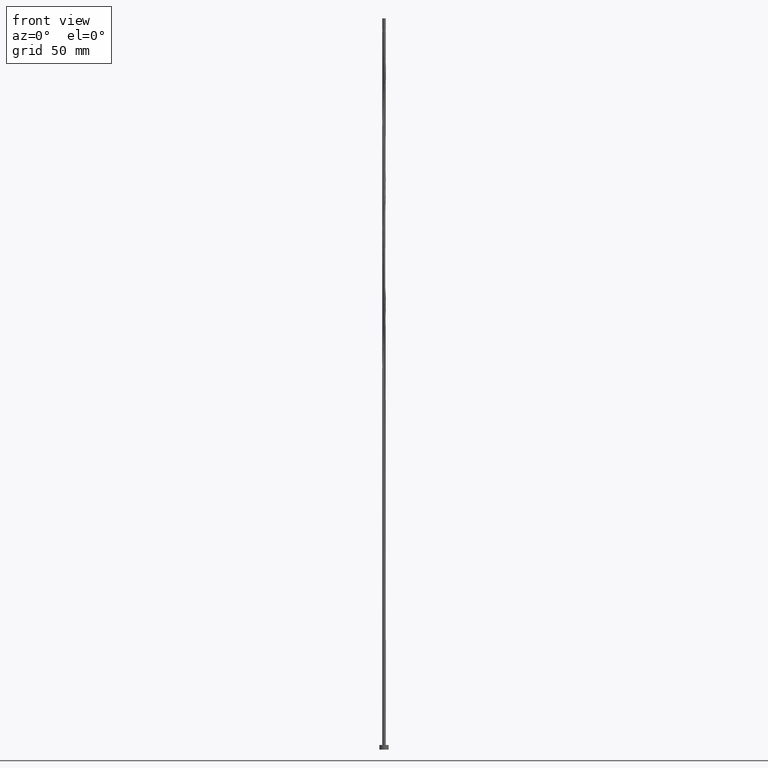
[diagram: clean part render]
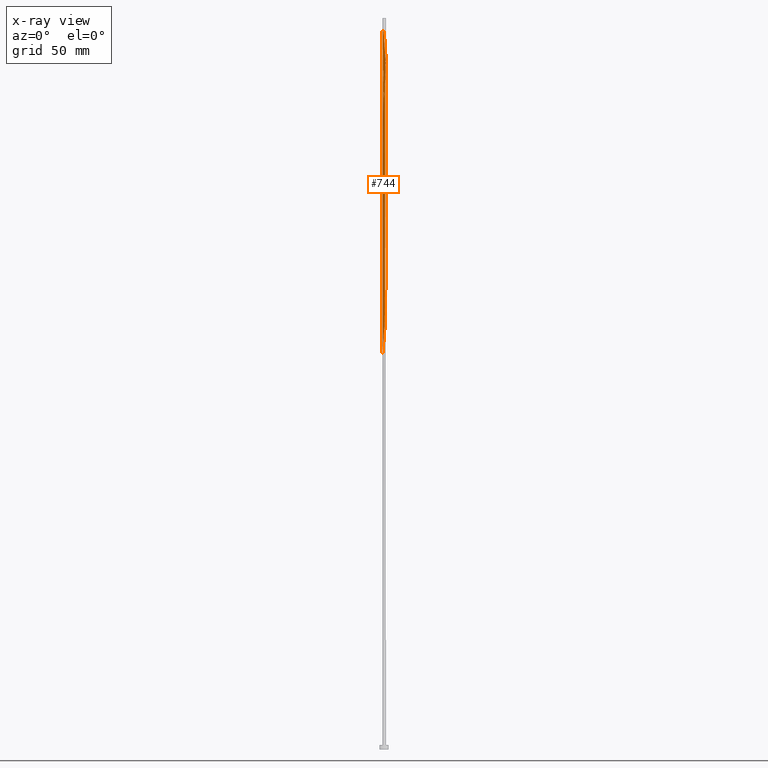
[diagram: x-ray — body ghosted, one internal face saturated and labeled with its STEP entity id]
A machine part, front view, then the same camera in x-ray: the body is ghosted and one INTERNAL B-rep face — a face not visible from any outside direction — is saturated and labeled: STEP entity #744.
In plain terms, the highlighted cylindrical surface (bore or boss wall) has radius 0.75 mm, axis along (-0, -0, -1).
Its self-contained STEP definition (entity closure, byte-faithful):
#15 = CARTESIAN_POINT ( 'NONE',  ( -0.7500000000000014433, -9.515180619971641405E-17, 268.4303063863328020 ) ) ;
#17 = DIRECTION ( 'NONE',  ( -0.000000000000000000, -0.000000000000000000, -1.000000000000000000 ) ) ;
#19 = CARTESIAN_POINT ( 'NONE',  ( -0.5749518798146917575, -0.4815914616119704172, 172.6048234642388763 ) ) ;
#29 = EDGE_CURVE ( 'NONE', #160, #1469, #1498, .T. ) ;
#33 = CARTESIAN_POINT ( 'NONE',  ( 0.4168099430121542381, 0.6292142056253040572, 302.9173234642388479 ) ) ;
#35 = CARTESIAN_POINT ( 'NONE',  ( -0.7500000000000012212, 3.143741047971028245E-16, 166.7793405421449791 ) ) ;
#43 = CARTESIAN_POINT ( 'NONE',  ( 0.4168099430121536830, -0.6292142056253036131, 184.7923234642388195 ) ) ;
#49 = CARTESIAN_POINT ( 'NONE',  ( -0.7181837760446289076, -0.2320627263925773009, 271.0423234642388479 ) ) ;
#57 = CARTESIAN_POINT ( 'NONE',  ( 0.7500000000000009992, 0.009024672874791424271, 245.6297032303699837 ) ) ;
#92 = VERTEX_POINT ( 'NONE', #1203 ) ;
#104 = CARTESIAN_POINT ( 'NONE',  ( -0.7500000000000001110, 0.000000000000000000, 315.0000000000000000 ) ) ;
#114 = CARTESIAN_POINT ( 'NONE',  ( -0.7181837760446285746, 0.2320627263925772454, 216.6673234642388195 ) ) ;
#126 = CARTESIAN_POINT ( 'NONE',  ( -0.3415781289176473834, 0.6677008176160346142, 210.1048234642388763 ) ) ;
#133 = DIRECTION ( 'NONE',  ( -0.000000000000000000, -0.000000000000000000, -1.000000000000000000 ) ) ;
#140 = CYLINDRICAL_SURFACE ( 'NONE', #1267, 0.7500000000000001110 ) ;
#150 = CARTESIAN_POINT ( 'NONE',  ( -0.1492481155660108638, 0.7350000000001851719, 309.4798234642387342 ) ) ;
#160 = VERTEX_POINT ( 'NONE', #1762 ) ;
#165 = CARTESIAN_POINT ( 'NONE',  ( 0.7061874296067650603, -0.2663463148231410837, 291.6673234642388479 ) ) ;
#167 = CARTESIAN_POINT ( 'NONE',  ( 0.7518162239553727311, -0.06643350473941404821, 192.2923234642388195 ) ) ;
#174 = CARTESIAN_POINT ( 'NONE',  ( 0.6677008176160343922, -0.3415781289176477165, 290.7298234642388479 ) ) ;
#182 = CARTESIAN_POINT ( 'NONE',  ( -0.5463729802117873735, -0.5206895540040796799, 274.7923234642388479 ) ) ;
#189 = VECTOR ( 'NONE', #133, 1000.000000000000000 ) ;
#191 = CARTESIAN_POINT ( 'NONE',  ( 0.2663463148231408062, -0.7061874296067648382, 182.9173234642388479 ) ) ;
#199 = CARTESIAN_POINT ( 'NONE',  ( -0.7500000000000012212, 2.024308033856715142E-16, 271.7793405421449506 ) ) ;
#213 = CARTESIAN_POINT ( 'NONE',  ( -0.1025269702435410574, 0.7477494670858394477, 259.7923234642387911 ) ) ;
#227 = CARTESIAN_POINT ( 'NONE',  ( -0.1844366425333410497, 0.7269684483463023650, 260.7298234642389048 ) ) ;
#238 = CARTESIAN_POINT ( 'NONE',  ( -0.7497828455206062559, -0.01804673275206353580, 219.4798234642388763 ) ) ;
#250 = CARTESIAN_POINT ( 'NONE',  ( -0.3090590401637189899, -0.6833611853866755625, 228.8548234642388479 ) ) ;
#256 = VERTEX_POINT ( 'NONE', #527 ) ;
#260 = ORIENTED_EDGE ( 'NONE', *, *, #775, .F. ) ;
#262 = CARTESIAN_POINT ( 'NONE',  ( -0.6485385947287229946, 0.3860553539348604013, 214.7923234642388195 ) ) ;
#285 = CARTESIAN_POINT ( 'NONE',  ( 0.7350000000000005418, -0.1492481155659957925, 243.8548234642389048 ) ) ;
#288 = EDGE_CURVE ( 'NONE', #160, #549, #1432, .T. ) ;
#300 = CARTESIAN_POINT ( 'NONE',  ( 0.7269684483463024760, -0.1844366425333412440, 292.6048234642389616 ) ) ;
#303 = LINE ( 'NONE', #600, #1118 ) ;
#327 = CARTESIAN_POINT ( 'NONE',  ( -0.7497828455206062559, -0.01804673275206353580, 166.9798234642388763 ) ) ;
#332 = CARTESIAN_POINT ( 'NONE',  ( 0.2320627263925774120, 0.7181837760446283525, 256.0423234642387911 ) ) ;
#335 = CARTESIAN_POINT ( 'NONE',  ( 0.6677008176160346142, 0.3415781289176472724, 196.9798234642389332 ) ) ;
#367 = CARTESIAN_POINT ( 'NONE',  ( -0.2663463148231408617, 0.7061874296067648382, 261.6673234642388479 ) ) ;
#386 = CARTESIAN_POINT ( 'NONE',  ( 0.1025269702435409602, -0.7477494670858394477, 233.5423234642387627 ) ) ;
#401 = CARTESIAN_POINT ( 'NONE',  ( -0.5463729802117868184, 0.5206895540040794579, 212.9173234642388195 ) ) ;
#410 = CARTESIAN_POINT ( 'NONE',  ( -0.7269684483463023650, -0.1844366425333409942, 221.3548234642388763 ) ) ;
#422 = CARTESIAN_POINT ( 'NONE',  ( 0.7500000000000011102, -3.936672766301999368E-16, 245.5293405421449222 ) ) ;
#437 = CARTESIAN_POINT ( 'NONE',  ( 0.5206895540040796799, -0.5463729802117873735, 287.9173234642388479 ) ) ;
#440 = CARTESIAN_POINT ( 'NONE',  ( 0.6833611853866755625, -0.3090590401637189899, 189.4798234642388479 ) ) ;
#446 = CARTESIAN_POINT ( 'NONE',  ( 0.5463729802117873735, 0.5206895540040795689, 301.0423234642389048 ) ) ;
#448 = CARTESIAN_POINT ( 'NONE',  ( -0.4533724539694700684, -0.5974557874702549620, 174.4798234642388763 ) ) ;
#454 = CARTESIAN_POINT ( 'NONE',  ( 0.2663463148231411948, 0.7061874296067650603, 304.7923234642390184 ) ) ;
#456 = CARTESIAN_POINT ( 'NONE',  ( 0.7181837760446283525, -0.2320627263925773287, 190.4173234642387911 ) ) ;
#457 = ORIENTED_EDGE ( 'NONE', *, *, #858, .T. ) ;
#464 = CARTESIAN_POINT ( 'NONE',  ( 0.06643350473941389556, 0.7518162239553727311, 205.4173234642388195 ) ) ;
#468 = CARTESIAN_POINT ( 'NONE',  ( -0.3415781289176473834, 0.6677008176160346142, 262.6048234642388479 ) ) ;
#470 = CARTESIAN_POINT ( 'NONE',  ( 0.7497828455206061449, 0.01804673275206346295, 193.2298234642388763 ) ) ;
#478 = CARTESIAN_POINT ( 'NONE',  ( -0.7500000000000012212, 2.024308033856715142E-16, 271.7793405421449506 ) ) ;
#487 = CARTESIAN_POINT ( 'NONE',  ( 0.7477494670858394477, 0.1025269702435409047, 246.6673234642388195 ) ) ;
#494 = CARTESIAN_POINT ( 'NONE',  ( -0.01804673275206359132, 0.7497828455206062559, 258.8548234642389048 ) ) ;
#499 = CARTESIAN_POINT ( 'NONE',  ( -0.4168099430121536830, 0.6292142056253036131, 263.5423234642387911 ) ) ;
#512 = CARTESIAN_POINT ( 'NONE',  ( -0.5749518798146917575, -0.4815914616119704172, 225.1048234642389048 ) ) ;
#521 = CARTESIAN_POINT ( 'NONE',  ( 0.2663463148231408062, -0.7061874296067648382, 235.4173234642387911 ) ) ;
#527 = CARTESIAN_POINT ( 'NONE',  ( -0.7500000000000012212, 3.143741047971027752E-16, 166.7793405421450075 ) ) ;
#541 = FACE_OUTER_BOUND ( 'NONE', #827, .T. ) ;
#549 = VERTEX_POINT ( 'NONE', #150 ) ;
#553 = CARTESIAN_POINT ( 'NONE',  ( -0.1492481155659957370, -0.7350000000000005418, 230.7298234642389048 ) ) ;
#570 = CARTESIAN_POINT ( 'NONE',  ( -0.3090590401637189899, -0.6833611853866755625, 176.3548234642389048 ) ) ;
#578 = CARTESIAN_POINT ( 'NONE',  ( 0.5463729802117868184, -0.5206895540040796799, 186.6673234642387911 ) ) ;
#582 = CARTESIAN_POINT ( 'NONE',  ( 0.3415781289176477165, 0.6677008176160343922, 303.8548234642388479 ) ) ;
#584 = CARTESIAN_POINT ( 'NONE',  ( 0.4533724539694700684, 0.5974557874702549620, 200.7298234642388763 ) ) ;
#589 = CARTESIAN_POINT ( 'NONE',  ( 0.1025269702435413766, 0.7477494670858398917, 306.6673234642388479 ) ) ;
#591 = CARTESIAN_POINT ( 'NONE',  ( -0.1492481155659957370, -0.7350000000000005418, 178.2298234642388763 ) ) ;
#598 = CARTESIAN_POINT ( 'NONE',  ( -0.1844366425333411608, -0.7269684483463024760, 279.4798234642388479 ) ) ;
#600 = CARTESIAN_POINT ( 'NONE',  ( 0.7500000000000001110, 9.184850993605150903E-17, 315.0000000000000000 ) ) ;
#617 = CARTESIAN_POINT ( 'NONE',  ( -0.7500000000000004441, 0.07537783614444545921, 270.9410694631812362 ) ) ;
#630 = ORIENTED_EDGE ( 'NONE', *, *, #29, .F. ) ;
#633 = CARTESIAN_POINT ( 'NONE',  ( 0.1492481155659958203, 0.7350000000000005418, 256.9798234642388479 ) ) ;
#642 = CARTESIAN_POINT ( 'NONE',  ( -0.7350000000000005418, 0.1492481155659956815, 270.1048234642388479 ) ) ;
#648 = LINE ( 'NONE', #104, #1174 ) ;
#657 = CARTESIAN_POINT ( 'NONE',  ( -0.1025269702435410574, 0.7477494670858394477, 207.2923234642388479 ) ) ;
#668 = CARTESIAN_POINT ( 'NONE',  ( 0.4815914616119704172, -0.5749518798146917575, 238.2298234642388763 ) ) ;
#681 = EDGE_CURVE ( 'NONE', #1777, #256, #648, .T. ) ;
#715 = CARTESIAN_POINT ( 'NONE',  ( 0.6485385947287228836, -0.3860553539348604013, 188.5423234642388195 ) ) ;
#723 = CARTESIAN_POINT ( 'NONE',  ( 0.7350000000000007638, 0.1492481155659955427, 296.3548234642387911 ) ) ;
#732 = CARTESIAN_POINT ( 'NONE',  ( -0.1025269702435412655, -0.7477494670858400028, 280.4173234642388479 ) ) ;
#734 = CARTESIAN_POINT ( 'NONE',  ( 0.7477494670858394477, 0.1025269702435409047, 194.1673234642388479 ) ) ;
#739 = CARTESIAN_POINT ( 'NONE',  ( 0.3090590401637188234, -0.6833611853866758956, 285.1048234642388479 ) ) ;
#741 = CARTESIAN_POINT ( 'NONE',  ( 0.01804673275206351499, -0.7497828455206062559, 180.1048234642389332 ) ) ;
#744 = ADVANCED_FACE ( 'NONE', ( #541 ), #140, .T. ) ;
#750 = CARTESIAN_POINT ( 'NONE',  ( 0.3860553539348605678, 0.6485385947287228836, 201.6673234642388479 ) ) ;
#756 = CARTESIAN_POINT ( 'NONE',  ( 0.5206895540040796799, 0.5463729802117868184, 252.2923234642388195 ) ) ;
#775 = EDGE_CURVE ( 'NONE', #92, #256, #926, .T. ) ;
#782 = CARTESIAN_POINT ( 'NONE',  ( 0.01804673275206383765, 0.7497828455206065890, 307.6048234642388479 ) ) ;
#788 = CARTESIAN_POINT ( 'NONE',  ( 0.7269684483463022540, 0.1844366425333408832, 247.6048234642389048 ) ) ;
#800 = CARTESIAN_POINT ( 'NONE',  ( -0.5974557874702550730, 0.4533724539694700684, 213.8548234642388479 ) ) ;
#809 = CARTESIAN_POINT ( 'NONE',  ( -0.7518162239553727311, 0.06643350473941395107, 218.5423234642387911 ) ) ;
#816 = DIRECTION ( 'NONE',  ( -1.000000000000000000, 0.000000000000000000, 0.000000000000000000 ) ) ;
#820 = CARTESIAN_POINT ( 'NONE',  ( -0.06643350473941400658, -0.7518162239553727311, 231.6673234642387627 ) ) ;
#827 = EDGE_LOOP ( 'NONE', ( #630, #983, #1765, #902, #260, #1340, #457, #1370 ) ) ;
#832 = CARTESIAN_POINT ( 'NONE',  ( 0.7181837760446283525, -0.2320627263925773287, 242.9173234642388195 ) ) ;
#845 = CARTESIAN_POINT ( 'NONE',  ( -0.2320627263925773287, -0.7181837760446283525, 229.7923234642388195 ) ) ;
#852 = CARTESIAN_POINT ( 'NONE',  ( 0.000000000000000000, 0.000000000000000000, 309.4798234642388479 ) ) ;
#858 = EDGE_CURVE ( 'NONE', #1478, #92, #303, .T. ) ;
#861 = CARTESIAN_POINT ( 'NONE',  ( -0.6677008176160346142, -0.3415781289176473834, 170.7298234642388763 ) ) ;
#865 = CARTESIAN_POINT ( 'NONE',  ( -0.6833611853866758956, -0.3090590401637188234, 271.9798234642389616 ) ) ;
#868 = DIRECTION ( 'NONE',  ( -0.000000000000000000, -0.000000000000000000, -1.000000000000000000 ) ) ;
#872 = CARTESIAN_POINT ( 'NONE',  ( 0.1844366425333412995, 0.7269684483463024760, 305.7298234642389048 ) ) ;
#875 = CARTESIAN_POINT ( 'NONE',  ( -0.6292142056253036131, -0.4168099430121536830, 171.6673234642388479 ) ) ;
#879 =( BOUNDED_CURVE ( )  B_SPLINE_CURVE ( 2, ( #15, #1129, #1153, #49, #865, #1283, #1712, #182, #1289, #1021, #988, #880, #598, #732, #1015, #1531, #1146, #1395, #739, #1554, #1681, #437, #1704, #1540, #174, #165, #300, #1546, #1429, #1407, #723, #1268, #1689, #1414, #1696, #446, #1277, #33, #582, #454, #872, #589, #782, #1051, #1744 ),
 .UNSPECIFIED., .F., .T. ) 
 B_SPLINE_CURVE_WITH_KNOTS ( ( 3, 2, 2, 2, 2, 2, 2, 2, 2, 2, 2, 2, 2, 2, 2, 2, 2, 2, 2, 2, 2, 2, 3 ),
 ( 0.5545303401299221946, 0.5625000000000000000, 0.5714285714285713969, 0.5803571428571427937, 0.5892857142857141906, 0.5982142857142855874, 0.6071428571428570953, 0.6160714285714284921, 0.6249999999999998890, 0.6339285714285712858, 0.6428571428571426827, 0.6517857142857140795, 0.6607142857142854764, 0.6696428571428569843, 0.6785714285714283811, 0.6874999999999997780, 0.6964285714285711748, 0.7053571428571425717, 0.7142857142857139685, 0.7232142857142853654, 0.7321428571428568732, 0.7410714285714282701, 0.7499999999999996669 ),
 .UNSPECIFIED. ) 
 CURVE ( )  GEOMETRIC_REPRESENTATION_ITEM ( )  RATIONAL_B_SPLINE_CURVE ( ( 0.9079949616363259812, 0.9039886423361885859, 0.9090909090910560542, 0.9033747362667301495, 0.9090909090910560542, 0.9033747362667301495, 0.9090909090910560542, 0.9033747362667301495, 0.9090909090910560542, 0.9033747362667301495, 0.9090909090910560542, 0.9033747362667301495, 0.9090909090910560542, 0.9033747362667301495, 0.9090909090910560542, 0.9033747362667301495, 0.9090909090910560542, 0.9033747362667301495, 0.9090909090910560542, 0.9033747362667301495, 0.9090909090910560542, 0.9033747362667301495, 0.9090909090910560542, 0.9033747362667301495, 0.9090909090910560542, 0.9033747362667301495, 0.9090909090910560542, 0.9033747362667301495, 0.9090909090910560542, 0.9033747362667301495, 0.9090909090910560542, 0.9033747362667301495, 0.9090909090910560542, 0.9033747362667301495, 0.9090909090910560542, 0.9033747362667301495, 0.9090909090910560542, 0.9033747362667301495, 0.9090909090910560542, 0.9033747362667301495, 0.9090909090910560542, 0.9033747362667301495, 0.9090909090910560542, 0.9033747362667302605, 0.9090909090910559431 ) ) 
 REPRESENTATION_ITEM ( '' )  );
#880 = CARTESIAN_POINT ( 'NONE',  ( -0.2663463148231410837, -0.7061874296067650603, 278.5423234642387911 ) ) ;
#882 = CARTESIAN_POINT ( 'NONE',  ( -0.5206895540040796799, -0.5463729802117868184, 173.5423234642388195 ) ) ;
#887 = CARTESIAN_POINT ( 'NONE',  ( 0.4533724539694700684, 0.5974557874702549620, 253.2298234642388479 ) ) ;
#889 = CARTESIAN_POINT ( 'NONE',  ( 0.7061874296067648382, 0.2663463148231406952, 196.0423234642388195 ) ) ;
#902 = ORIENTED_EDGE ( 'NONE', *, *, #681, .T. ) ;
#915 = CARTESIAN_POINT ( 'NONE',  ( -0.5463729802117868184, 0.5206895540040794579, 265.4173234642387911 ) ) ;
#924 = CARTESIAN_POINT ( 'NONE',  ( 0.7497828455206061449, 0.01804673275206346295, 245.7298234642388479 ) ) ;
#926 =( BOUNDED_CURVE ( )  B_SPLINE_CURVE ( 2, ( #422, #1242, #285, #832, #938, #1642, #1627, #984, #668, #1805, #1526, #521, #1480, #386, #1085, #820, #553, #845, #250, #946, #1391, #1780, #512, #972, #1107, #1064, #410, #1491, #238, #809, #1352, #114, #961, #262, #800, #401, #1364, #1513, #126, #1343, #1793, #657, #1208, #464, #1416, #1410, #1279, #750, #584, #1548, #1683, #1698, #335, #889, #1272, #734, #470, #167, #1691, #456, #440, #715, #1001, #578, #1156, #43, #1023, #191, #1029, #1565, #741, #1285, #591, #1437, #570, #1715, #448, #882, #19, #875, #861, #1292, #1556, #1572, #327, #1260, #35 ),
 .UNSPECIFIED., .F., .T. ) 
 B_SPLINE_CURVE_WITH_KNOTS ( ( 3, 2, 2, 2, 2, 2, 2, 2, 2, 2, 2, 2, 2, 2, 2, 2, 2, 2, 2, 2, 2, 2, 2, 2, 2, 2, 2, 2, 2, 2, 2, 2, 2, 2, 2, 2, 2, 2, 2, 2, 2, 2, 2, 3 ),
 ( 0.5545303401299219725, 0.5625000000000000000, 0.5714285714285713969, 0.5803571428571429047, 0.5892857142857143016, 0.5982142857142856984, 0.6071428571428570953, 0.6160714285714286031, 0.6250000000000000000, 0.6339285714285713969, 0.6428571428571429047, 0.6517857142857143016, 0.6607142857142856984, 0.6696428571428570953, 0.6785714285714286031, 0.6875000000000000000, 0.6964285714285713969, 0.7053571428571429047, 0.7142857142857143016, 0.7232142857142856984, 0.7321428571428570953, 0.7410714285714286031, 0.7500000000000000000, 0.7589285714285713969, 0.7678571428571429047, 0.7767857142857143016, 0.7857142857142856984, 0.7946428571428570953, 0.8035714285714286031, 0.8125000000000000000, 0.8214285714285713969, 0.8303571428571429047, 0.8392857142857143016, 0.8482142857142856984, 0.8571428571428570953, 0.8660714285714286031, 0.8750000000000000000, 0.8839285714285713969, 0.8928571428571429047, 0.9017857142857143016, 0.9107142857142856984, 0.9196428571428572063, 0.9285714285714286031, 0.9295303401299217505 ),
 .UNSPECIFIED. ) 
 CURVE ( )  GEOMETRIC_REPRESENTATION_ITEM ( )  RATIONAL_B_SPLINE_CURVE ( ( 0.9079949616363245379, 0.9039886423361872536, 0.9090909090910544998, 0.9033747362667289282, 0.9090909090910544998, 0.9033747362667289282, 0.9090909090910544998, 0.9033747362667289282, 0.9090909090910544998, 0.9033747362667289282, 0.9090909090910544998, 0.9033747362667289282, 0.9090909090910544998, 0.9033747362667289282, 0.9090909090910544998, 0.9033747362667289282, 0.9090909090910544998, 0.9033747362667289282, 0.9090909090910544998, 0.9033747362667289282, 0.9090909090910544998, 0.9033747362667289282, 0.9090909090910544998, 0.9033747362667289282, 0.9090909090910544998, 0.9033747362667289282, 0.9090909090910544998, 0.9033747362667289282, 0.9090909090910544998, 0.9033747362667289282, 0.9090909090910544998, 0.9033747362667289282, 0.9090909090910544998, 0.9033747362667289282, 0.9090909090910544998, 0.9033747362667289282, 0.9090909090910544998, 0.9033747362667289282, 0.9090909090910544998, 0.9033747362667289282, 0.9090909090910544998, 0.9033747362667289282, 0.9090909090910544998, 0.9033747362667289282, 0.9090909090910544998, 0.9033747362667289282, 0.9090909090910544998, 0.9033747362667289282, 0.9090909090910544998, 0.9033747362667289282, 0.9090909090910544998, 0.9033747362667289282, 0.9090909090910544998, 0.9033747362667289282, 0.9090909090910544998, 0.9033747362667289282, 0.9090909090910544998, 0.9033747362667289282, 0.9090909090910544998, 0.9033747362667289282, 0.9090909090910544998, 0.9033747362667289282, 0.9090909090910544998, 0.9033747362667289282, 0.9090909090910544998, 0.9033747362667289282, 0.9090909090910544998, 0.9033747362667289282, 0.9090909090910544998, 0.9033747362667289282, 0.9090909090910544998, 0.9033747362667289282, 0.9090909090910544998, 0.9033747362667289282, 0.9090909090910544998, 0.9033747362667289282, 0.9090909090910544998, 0.9033747362667289282, 0.9090909090910544998, 0.9033747362667289282, 0.9090909090910544998, 0.9033747362667289282, 0.9090909090910544998, 0.9033747362667289282, 0.9090909090910544998, 0.9084770030215963965, 0.9079949616363247600 ) ) 
 REPRESENTATION_ITEM ( '' )  );
#938 = CARTESIAN_POINT ( 'NONE',  ( 0.6833611853866755625, -0.3090590401637189899, 241.9798234642388479 ) ) ;
#946 = CARTESIAN_POINT ( 'NONE',  ( -0.3860553539348604013, -0.6485385947287229946, 227.9173234642387911 ) ) ;
#961 = CARTESIAN_POINT ( 'NONE',  ( -0.6833611853866755625, 0.3090590401637188789, 215.7298234642389048 ) ) ;
#972 = CARTESIAN_POINT ( 'NONE',  ( -0.6292142056253036131, -0.4168099430121536830, 224.1673234642387911 ) ) ;
#983 = ORIENTED_EDGE ( 'NONE', *, *, #288, .T. ) ;
#984 = CARTESIAN_POINT ( 'NONE',  ( 0.5463729802117868184, -0.5206895540040796799, 239.1673234642388195 ) ) ;
#988 = CARTESIAN_POINT ( 'NONE',  ( -0.3415781289176476054, -0.6677008176160343922, 277.6048234642387911 ) ) ;
#1001 = CARTESIAN_POINT ( 'NONE',  ( 0.5974557874702549620, -0.4533724539694700684, 187.6048234642389332 ) ) ;
#1015 = CARTESIAN_POINT ( 'NONE',  ( -0.01804673275206369540, -0.7497828455206065890, 281.3548234642389048 ) ) ;
#1021 = CARTESIAN_POINT ( 'NONE',  ( -0.4168099430121541826, -0.6292142056253040572, 276.6673234642389048 ) ) ;
#1023 = CARTESIAN_POINT ( 'NONE',  ( 0.3415781289176472724, -0.6677008176160346142, 183.8548234642389332 ) ) ;
#1027 = CARTESIAN_POINT ( 'NONE',  ( 0.06643350473941389556, 0.7518162239553727311, 257.9173234642387911 ) ) ;
#1029 = CARTESIAN_POINT ( 'NONE',  ( 0.1844366425333409387, -0.7269684483463022540, 181.9798234642388479 ) ) ;
#1046 = CARTESIAN_POINT ( 'NONE',  ( 0.3860553539348605678, 0.6485385947287228836, 254.1673234642388195 ) ) ;
#1051 = CARTESIAN_POINT ( 'NONE',  ( -0.06643350473941059264, 0.7518162239553730641, 308.5423234642389616 ) ) ;
#1064 = CARTESIAN_POINT ( 'NONE',  ( -0.7061874296067648382, -0.2663463148231408062, 222.2923234642387627 ) ) ;
#1085 = CARTESIAN_POINT ( 'NONE',  ( 0.01804673275206351499, -0.7497828455206062559, 232.6048234642388763 ) ) ;
#1107 = CARTESIAN_POINT ( 'NONE',  ( -0.6677008176160346142, -0.3415781289176473834, 223.2298234642389048 ) ) ;
#1118 = VECTOR ( 'NONE', #868, 1000.000000000000000 ) ;
#1129 = CARTESIAN_POINT ( 'NONE',  ( -0.7500000000000009992, -0.07537783614444443225, 269.2685774652964028 ) ) ;
#1146 = CARTESIAN_POINT ( 'NONE',  ( 0.1492481155659955983, -0.7350000000000007638, 283.2298234642388479 ) ) ;
#1153 = CARTESIAN_POINT ( 'NONE',  ( -0.7350000000000007638, -0.1492481155659956260, 270.1048234642388479 ) ) ;
#1156 = CARTESIAN_POINT ( 'NONE',  ( 0.4815914616119704172, -0.5749518798146917575, 185.7298234642388763 ) ) ;
#1174 = VECTOR ( 'NONE', #1197, 1000.000000000000000 ) ;
#1184 = CARTESIAN_POINT ( 'NONE',  ( 0.5749518798146917575, 0.4815914616119704172, 251.3548234642389332 ) ) ;
#1191 = CARTESIAN_POINT ( 'NONE',  ( -0.5974557874702550730, 0.4533724539694700684, 266.3548234642389616 ) ) ;
#1197 = DIRECTION ( 'NONE',  ( -0.000000000000000000, -0.000000000000000000, -1.000000000000000000 ) ) ;
#1203 = CARTESIAN_POINT ( 'NONE',  ( 0.7500000000000011102, -3.936672766301999368E-16, 245.5293405421449222 ) ) ;
#1208 = CARTESIAN_POINT ( 'NONE',  ( -0.01804673275206359132, 0.7497828455206062559, 206.3548234642388763 ) ) ;
#1242 = CARTESIAN_POINT ( 'NONE',  ( 0.7500000000000007772, -0.07537783614444251712, 244.6910694631812930 ) ) ;
#1260 = CARTESIAN_POINT ( 'NONE',  ( -0.7500000000000012212, -0.009024672874793590940, 166.8797032303700405 ) ) ;
#1267 = AXIS2_PLACEMENT_3D ( 'NONE', #1652, #1767, #1757 ) ;
#1268 = CARTESIAN_POINT ( 'NONE',  ( 0.7181837760446289076, 0.2320627263925772177, 297.2923234642387911 ) ) ;
#1272 = CARTESIAN_POINT ( 'NONE',  ( 0.7269684483463022540, 0.1844366425333408832, 195.1048234642388195 ) ) ;
#1277 = CARTESIAN_POINT ( 'NONE',  ( 0.4815914616119707503, 0.5749518798146917575, 301.9798234642387342 ) ) ;
#1279 = CARTESIAN_POINT ( 'NONE',  ( 0.3090590401637189899, 0.6833611853866755625, 202.6048234642388195 ) ) ;
#1283 = CARTESIAN_POINT ( 'NONE',  ( -0.6485385947287234387, -0.3860553539348605123, 272.9173234642388479 ) ) ;
#1285 = CARTESIAN_POINT ( 'NONE',  ( -0.06643350473941400658, -0.7518162239553727311, 179.1673234642388195 ) ) ;
#1289 = CARTESIAN_POINT ( 'NONE',  ( -0.4815914616119707503, -0.5749518798146917575, 275.7298234642387911 ) ) ;
#1292 = CARTESIAN_POINT ( 'NONE',  ( -0.7061874296067648382, -0.2663463148231408062, 169.7923234642388479 ) ) ;
#1296 = CARTESIAN_POINT ( 'NONE',  ( 0.6292142056253036131, 0.4168099430121536830, 250.4173234642387911 ) ) ;
#1305 = CARTESIAN_POINT ( 'NONE',  ( 0.7500000000000001110, 9.184850993605150903E-17, 309.4798234642388479 ) ) ;
#1314 = EDGE_CURVE ( 'NONE', #1777, #549, #879, .T. ) ;
#1320 = CARTESIAN_POINT ( 'NONE',  ( -0.6485385947287229946, 0.3860553539348604013, 267.2923234642387911 ) ) ;
#1326 = CARTESIAN_POINT ( 'NONE',  ( -0.7181837760446285746, 0.2320627263925772454, 269.1673234642389048 ) ) ;
#1340 = ORIENTED_EDGE ( 'NONE', *, *, #858, .F. ) ;
#1343 = CARTESIAN_POINT ( 'NONE',  ( -0.2663463148231408617, 0.7061874296067648382, 209.1673234642387911 ) ) ;
#1352 = CARTESIAN_POINT ( 'NONE',  ( -0.7350000000000005418, 0.1492481155659956815, 217.6048234642389332 ) ) ;
#1364 = CARTESIAN_POINT ( 'NONE',  ( -0.4815914616119705283, 0.5749518798146917575, 211.9798234642389048 ) ) ;
#1370 = ORIENTED_EDGE ( 'NONE', *, *, #1376, .F. ) ;
#1376 = EDGE_CURVE ( 'NONE', #1469, #92, #1743, .T. ) ;
#1391 = CARTESIAN_POINT ( 'NONE',  ( -0.4533724539694700684, -0.5974557874702549620, 226.9798234642388763 ) ) ;
#1395 = CARTESIAN_POINT ( 'NONE',  ( 0.2320627263925772732, -0.7181837760446289076, 284.1673234642388479 ) ) ;
#1407 = CARTESIAN_POINT ( 'NONE',  ( 0.7518162239553731752, 0.06643350473941378453, 295.4173234642389616 ) ) ;
#1410 = CARTESIAN_POINT ( 'NONE',  ( 0.2320627263925774120, 0.7181837760446283525, 203.5423234642388763 ) ) ;
#1414 = CARTESIAN_POINT ( 'NONE',  ( 0.6485385947287234387, 0.3860553539348604013, 299.1673234642389048 ) ) ;
#1416 = CARTESIAN_POINT ( 'NONE',  ( 0.1492481155659958203, 0.7350000000000005418, 204.4798234642389048 ) ) ;
#1429 = CARTESIAN_POINT ( 'NONE',  ( 0.7497828455206065890, -0.01804673275206375785, 294.4798234642387911 ) ) ;
#1432 = CIRCLE ( 'NONE', #1725, 0.7499999999999742428 ) ;
#1437 = CARTESIAN_POINT ( 'NONE',  ( -0.2320627263925773287, -0.7181837760446283525, 177.2923234642388763 ) ) ;
#1442 = CARTESIAN_POINT ( 'NONE',  ( 0.7061874296067648382, 0.2663463148231406952, 248.5423234642388479 ) ) ;
#1452 = CARTESIAN_POINT ( 'NONE',  ( 0.6677008176160346142, 0.3415781289176472724, 249.4798234642388479 ) ) ;
#1459 = CARTESIAN_POINT ( 'NONE',  ( 0.3090590401637189899, 0.6833611853866755625, 255.1048234642389048 ) ) ;
#1466 = CARTESIAN_POINT ( 'NONE',  ( -0.4815914616119705283, 0.5749518798146917575, 264.4798234642389048 ) ) ;
#1469 = VERTEX_POINT ( 'NONE', #478 ) ;
#1478 = VERTEX_POINT ( 'NONE', #1305 ) ;
#1480 = CARTESIAN_POINT ( 'NONE',  ( 0.1844366425333409387, -0.7269684483463022540, 234.4798234642388479 ) ) ;
#1491 = CARTESIAN_POINT ( 'NONE',  ( -0.7477494670858394477, -0.1025269702435410019, 220.4173234642388195 ) ) ;
#1498 = LINE ( 'NONE', #1799, #189 ) ;
#1513 = CARTESIAN_POINT ( 'NONE',  ( -0.4168099430121536830, 0.6292142056253036131, 211.0423234642387911 ) ) ;
#1526 = CARTESIAN_POINT ( 'NONE',  ( 0.3415781289176472724, -0.6677008176160346142, 236.3548234642388479 ) ) ;
#1531 = CARTESIAN_POINT ( 'NONE',  ( 0.06643350473941382617, -0.7518162239553731752, 282.2923234642389048 ) ) ;
#1534 = CARTESIAN_POINT ( 'NONE',  ( -0.7500000000000014433, -9.515180619971641405E-17, 268.4303063863328020 ) ) ;
#1540 = CARTESIAN_POINT ( 'NONE',  ( 0.6292142056253040572, -0.4168099430121542381, 289.7923234642387342 ) ) ;
#1546 = CARTESIAN_POINT ( 'NONE',  ( 0.7477494670858398917, -0.1025269702435413349, 293.5423234642387911 ) ) ;
#1548 = CARTESIAN_POINT ( 'NONE',  ( 0.5206895540040796799, 0.5463729802117868184, 199.7923234642388479 ) ) ;
#1554 = CARTESIAN_POINT ( 'NONE',  ( 0.3860553539348605123, -0.6485385947287234387, 286.0423234642388479 ) ) ;
#1556 = CARTESIAN_POINT ( 'NONE',  ( -0.7269684483463023650, -0.1844366425333409942, 168.8548234642389048 ) ) ;
#1565 = CARTESIAN_POINT ( 'NONE',  ( 0.1025269702435409602, -0.7477494670858394477, 181.0423234642388195 ) ) ;
#1572 = CARTESIAN_POINT ( 'NONE',  ( -0.7477494670858394477, -0.1025269702435410019, 167.9173234642387911 ) ) ;
#1581 = CARTESIAN_POINT ( 'NONE',  ( 0.7500000000000011102, -3.936672766301999368E-16, 245.5293405421449222 ) ) ;
#1592 = CARTESIAN_POINT ( 'NONE',  ( -0.6833611853866755625, 0.3090590401637188789, 268.2298234642389048 ) ) ;
#1627 = CARTESIAN_POINT ( 'NONE',  ( 0.5974557874702549620, -0.4533724539694700684, 240.1048234642389048 ) ) ;
#1642 = CARTESIAN_POINT ( 'NONE',  ( 0.6485385947287228836, -0.3860553539348604013, 241.0423234642388479 ) ) ;
#1652 = CARTESIAN_POINT ( 'NONE',  ( 0.000000000000000000, 0.000000000000000000, 315.0000000000000000 ) ) ;
#1681 = CARTESIAN_POINT ( 'NONE',  ( 0.4533724539694700129, -0.5974557874702552951, 286.9798234642389048 ) ) ;
#1683 = CARTESIAN_POINT ( 'NONE',  ( 0.5749518798146917575, 0.4815914616119704172, 198.8548234642388479 ) ) ;
#1689 = CARTESIAN_POINT ( 'NONE',  ( 0.6833611853866760066, 0.3090590401637188234, 298.2298234642387911 ) ) ;
#1691 = CARTESIAN_POINT ( 'NONE',  ( 0.7350000000000005418, -0.1492481155659957925, 191.3548234642388763 ) ) ;
#1696 = CARTESIAN_POINT ( 'NONE',  ( 0.5974557874702552951, 0.4533724539694700129, 300.1048234642389048 ) ) ;
#1698 = CARTESIAN_POINT ( 'NONE',  ( 0.6292142056253036131, 0.4168099430121536830, 197.9173234642388195 ) ) ;
#1704 = CARTESIAN_POINT ( 'NONE',  ( 0.5749518798146917575, -0.4815914616119707503, 288.8548234642387911 ) ) ;
#1712 = CARTESIAN_POINT ( 'NONE',  ( -0.5974557874702551841, -0.4533724539694700129, 273.8548234642387911 ) ) ;
#1715 = CARTESIAN_POINT ( 'NONE',  ( -0.3860553539348604013, -0.6485385947287229946, 175.4173234642387911 ) ) ;
#1725 = AXIS2_PLACEMENT_3D ( 'NONE', #852, #17, #816 ) ;
#1743 =( BOUNDED_CURVE ( )  B_SPLINE_CURVE ( 2, ( #199, #617, #642, #1326, #1592, #1320, #1191, #915, #1466, #499, #468, #367, #227, #213, #494, #1027, #633, #332, #1459, #1046, #887, #756, #1184, #1296, #1452, #1442, #788, #487, #924, #57, #1581 ),
 .UNSPECIFIED., .F., .T. ) 
 B_SPLINE_CURVE_WITH_KNOTS ( ( 3, 2, 2, 2, 2, 2, 2, 2, 2, 2, 2, 2, 2, 2, 2, 3 ),
 ( 0.4295303401299222501, 0.4375000000000000000, 0.4464285714285714524, 0.4553571428571428492, 0.4642857142857143016, 0.4732142857142856984, 0.4821428571428571508, 0.4910714285714285476, 0.5000000000000000000, 0.5089285714285713969, 0.5178571428571429047, 0.5267857142857143016, 0.5357142857142856984, 0.5446428571428570953, 0.5535714285714286031, 0.5545303401299219725 ),
 .UNSPECIFIED. ) 
 CURVE ( )  GEOMETRIC_REPRESENTATION_ITEM ( )  RATIONAL_B_SPLINE_CURVE ( ( 0.9079949616363243159, 0.9039886423361874757, 0.9090909090910544998, 0.9033747362667289282, 0.9090909090910544998, 0.9033747362667289282, 0.9090909090910544998, 0.9033747362667289282, 0.9090909090910544998, 0.9033747362667289282, 0.9090909090910544998, 0.9033747362667289282, 0.9090909090910544998, 0.9033747362667289282, 0.9090909090910544998, 0.9033747362667289282, 0.9090909090910544998, 0.9033747362667289282, 0.9090909090910544998, 0.9033747362667289282, 0.9090909090910544998, 0.9033747362667289282, 0.9090909090910544998, 0.9033747362667289282, 0.9090909090910544998, 0.9033747362667289282, 0.9090909090910544998, 0.9033747362667289282, 0.9090909090910544998, 0.9084770030215962855, 0.9079949616363245379 ) ) 
 REPRESENTATION_ITEM ( '' )  );
#1744 = CARTESIAN_POINT ( 'NONE',  ( -0.1492481155660108361, 0.7350000000001851719, 309.4798234642387911 ) ) ;
#1757 = DIRECTION ( 'NONE',  ( -1.000000000000000000, 0.000000000000000000, 0.000000000000000000 ) ) ;
#1762 = CARTESIAN_POINT ( 'NONE',  ( -0.7499999999999742428, 0.000000000000000000, 309.4798234642388479 ) ) ;
#1765 = ORIENTED_EDGE ( 'NONE', *, *, #1314, .F. ) ;
#1767 = DIRECTION ( 'NONE',  ( -0.000000000000000000, -0.000000000000000000, -1.000000000000000000 ) ) ;
#1777 = VERTEX_POINT ( 'NONE', #1534 ) ;
#1780 = CARTESIAN_POINT ( 'NONE',  ( -0.5206895540040796799, -0.5463729802117868184, 226.0423234642387627 ) ) ;
#1793 = CARTESIAN_POINT ( 'NONE',  ( -0.1844366425333410497, 0.7269684483463023650, 208.2298234642389048 ) ) ;
#1799 = CARTESIAN_POINT ( 'NONE',  ( -0.7500000000000001110, 0.000000000000000000, 315.0000000000000000 ) ) ;
#1805 = CARTESIAN_POINT ( 'NONE',  ( 0.4168099430121536830, -0.6292142056253036131, 237.2923234642387627 ) ) ;